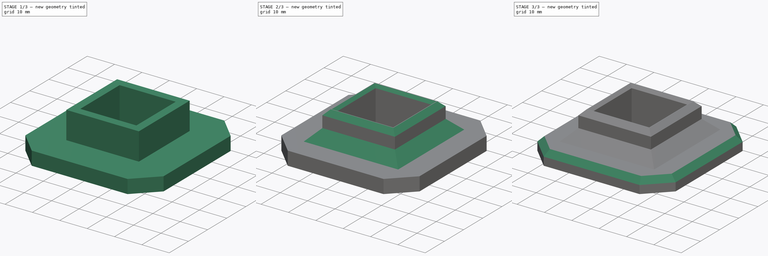
[diagram: build sequence overview — one tinted view per stage of 3, left to right]
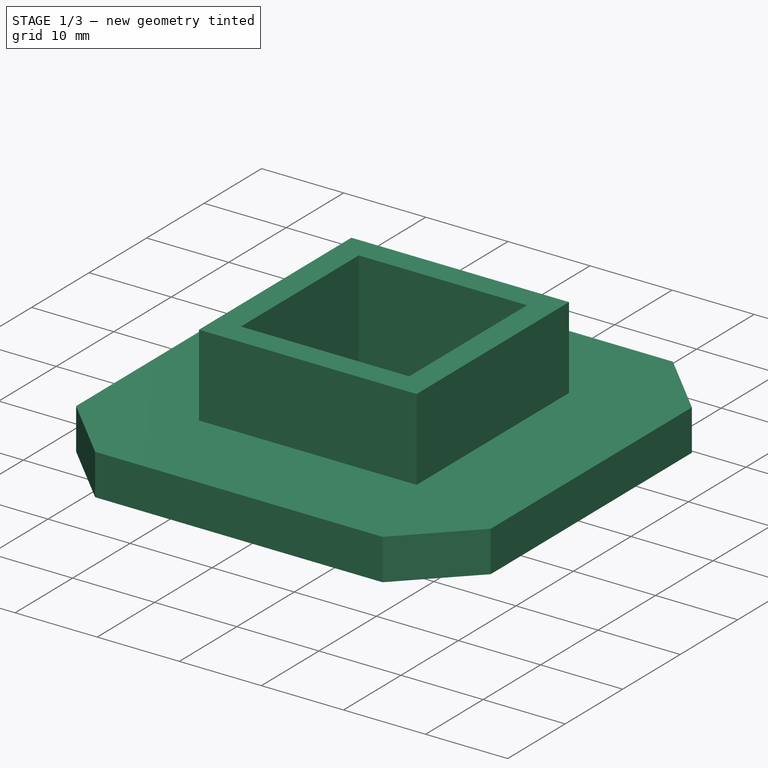
[diagram: stage 1 of 3 — iso view after this stage's code; geometry added in this stage tinted green]
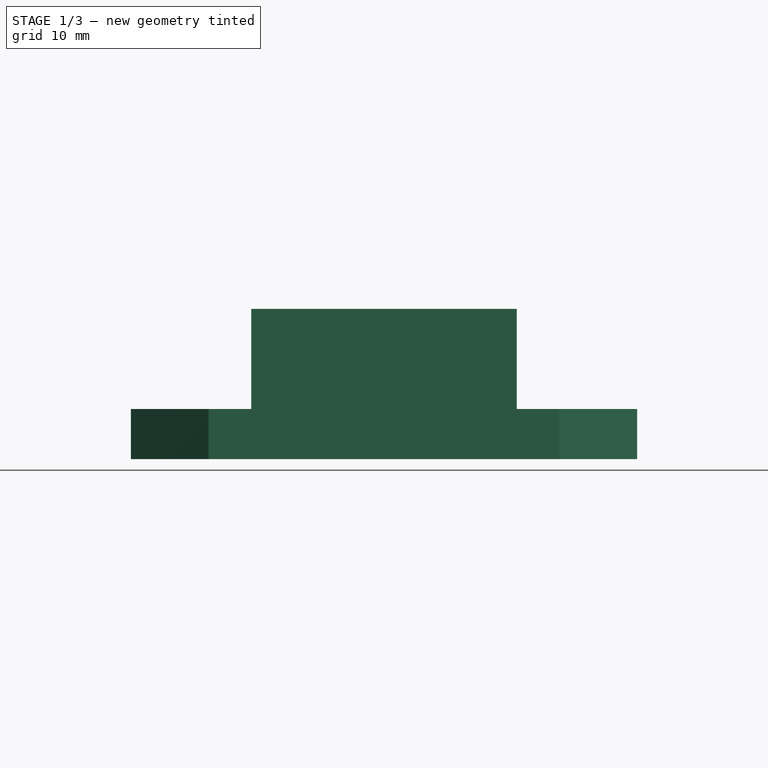
[diagram: stage 1 of 3 — front view after this stage's code; geometry added in this stage tinted green]
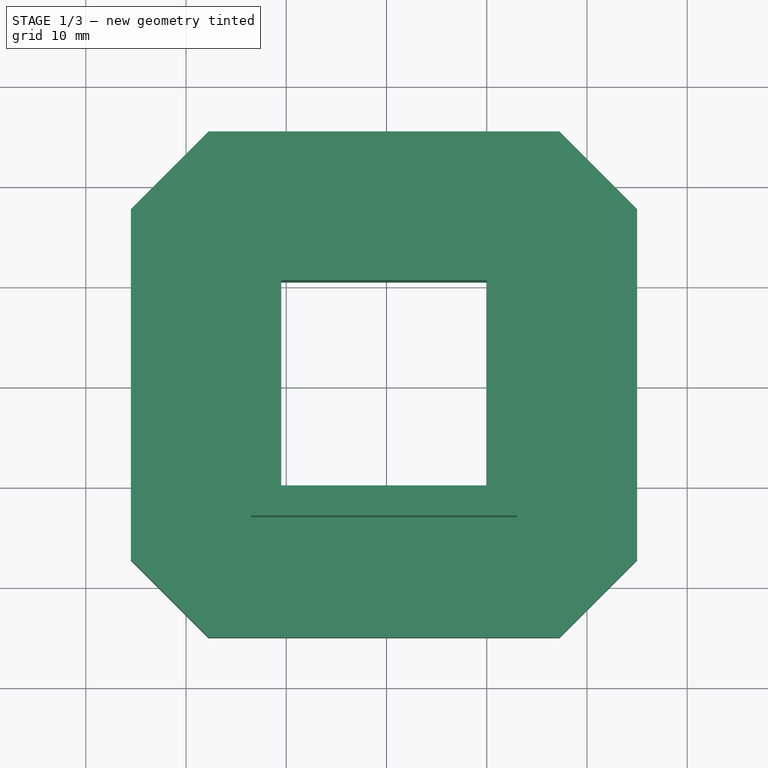
[diagram: stage 1 of 3 — top view after this stage's code; geometry added in this stage tinted green]
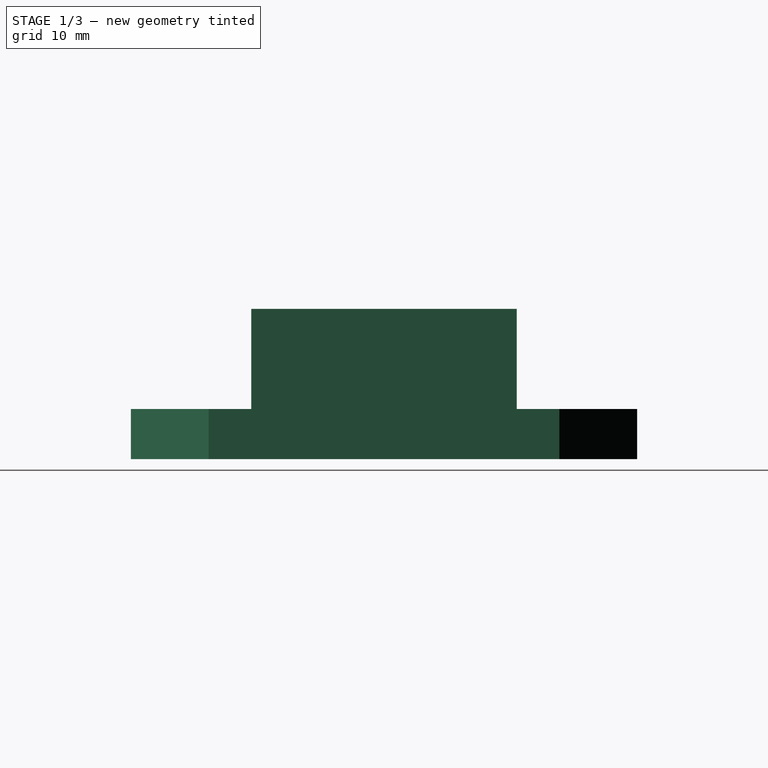
[diagram: stage 1 of 3 — right view after this stage's code; geometry added in this stage tinted green]
FCSTD DOCUMENT  (FreeCAD 1.0R38642 (Git))
Label: Dachreling_Fuß
License: All rights reserved
LicenseURL: http://en.wikipedia.org/wiki/All_rights_reserved
objects: Sketcher::SketchObject×4, PartDesign::Chamfer×4, PartDesign::Pad×2, PartDesign::SubtractivePipe×1, PartDesign::Body×1
note: 30 computed .brp shape members not serialized (recipe doc carries the construction recipe); baked Part::Feature solids carry a one-line shape summary decoded from their .brp

FEATURE [Sketcher::SketchObject] Sketch
  ArcFitTolerance = 1e-06
  AttachmentSupport = -> [XY_Plane]
  FullyConstrained = true
  MakeInternals = false
  MapMode = 5
  sketch-geometry (12):
    g0: LineSegment StartX=0 StartY=0 StartZ=0 EndX=0 EndY=20.5 EndZ=0
    g1: LineSegment StartX=0 StartY=20.5 StartZ=0 EndX=-20.5 EndY=20.5 EndZ=0
    g2: LineSegment StartX=-20.5 StartY=20.5 StartZ=0 EndX=-20.5 EndY=0 EndZ=0
    g3: LineSegment StartX=-20.5 StartY=0 StartZ=0 EndX=0 EndY=0 EndZ=0
    g4: LineSegment StartX=7.25 StartY=-15 StartZ=0 EndX=15 EndY=-7.25 EndZ=0
    g5: LineSegment StartX=15 StartY=-7.25 StartZ=0 EndX=15 EndY=27.75 EndZ=0
    g6: LineSegment StartX=15 StartY=27.75 StartZ=0 EndX=7.25 EndY=35.5 EndZ=0
    g7: LineSegment StartX=7.25 StartY=35.5 StartZ=0 EndX=-27.75 EndY=35.5 EndZ=0
    g8: LineSegment StartX=-27.75 StartY=35.5 StartZ=0 EndX=-35.5 EndY=27.75 EndZ=0
    g9: LineSegment StartX=-35.5 StartY=27.75 StartZ=0 EndX=-35.5 EndY=-7.25 EndZ=0
    g10: LineSegment StartX=-35.5 StartY=-7.25 StartZ=0 EndX=-27.75 EndY=-15 EndZ=0
    g11: LineSegment StartX=-27.75 StartY=-15 StartZ=0 EndX=7.25 EndY=-15 EndZ=0
  constraints (35):
    c: Coincident(g0,g1)
    c: Coincident(g1,g2)
    c: Coincident(g2,g3)
    c: Coincident(g3,g0)
    c: Vertical(g0)
    c: Vertical(g2)
    c: Horizontal(g1)
    c: Horizontal(g3)
    c: DistanceX(g1,g1) = 20.5
    c: DistanceY(g2,g2) = 20.5
    c: Coincident(g-1,g0)
    c: Coincident(g4,g5)
    c: Vertical(g5)
    c: Coincident(g5,g6)
    c: Coincident(g6,g7)
    c: Horizontal(g7)
    c: Coincident(g7,g8)
    c: Coincident(g8,g9)
    c: Vertical(g9)
    c: Coincident(g9,g10)
    c: Coincident(g10,g11)
    c: Coincident(g11,g4)
    c: Horizontal(g11)
    c: DistanceX(g0,g4) = 15
    c: DistanceX(g9,g2) = 15
    c: DistanceY(g0,g6) = 15
    c: DistanceY(g4,g0) = 15
    c: DistanceY(g9,g9) = 35
    c: Equal(g9,g7)
    c: Equal(g7,g5)
    c: Equal(g5,g11)
    c: Angle(g9,g8) = 2.35619
    c: Angle(g6,g5) = 2.35619
    c: Angle(g11,g10) = 2.35619
    c: Equal(g4,g6)
FEATURE [PartDesign::Pad] Pad
  Direction = (0,0,1)
  Length = 5
  Length2 = 10
  Profile = -> Sketch
  ReferenceAxis = -> Sketch [N_Axis]
  Suppressed = false
  Type = 0
FEATURE [Sketcher::SketchObject] Sketch001
  ArcFitTolerance = 1e-06
  AttachmentSupport = -> [Pad]
  ExternalGeometry = -> [Pad]
  FullyConstrained = true
  MakeInternals = false
  MapMode = 5
  Placement = pos=(0,0,5) rot=(0,0,1;0rad)
  sketch-geometry (8):
    g0: LineSegment StartX=-23.5 StartY=23.5 StartZ=0 EndX=-23.5 EndY=-3 EndZ=0
    g1: LineSegment StartX=-23.5 StartY=-3 StartZ=0 EndX=3 EndY=-3 EndZ=0
    g2: LineSegment StartX=3 StartY=-3 StartZ=0 EndX=3 EndY=23.5 EndZ=0
    g3: LineSegment StartX=3 StartY=23.5 StartZ=0 EndX=-23.5 EndY=23.5 EndZ=0
    g4: LineSegment StartX=-20.5 StartY=20.5 StartZ=0 EndX=-20.5 EndY=0 EndZ=0
    g5: LineSegment StartX=-20.5 StartY=0 StartZ=0 EndX=0 EndY=0 EndZ=0
    g6: LineSegment StartX=0 StartY=0 StartZ=0 EndX=0 EndY=20.5 EndZ=0
    g7: LineSegment StartX=0 StartY=20.5 StartZ=0 EndX=-20.5 EndY=20.5 EndZ=0
  constraints (22):
    c: Coincident(g0,g1)
    c: Coincident(g1,g2)
    c: Coincident(g2,g3)
    c: Coincident(g3,g0)
    c: Vertical(g0)
    c: Vertical(g2)
    c: Horizontal(g1)
    c: Horizontal(g3)
    c: DistanceX(g0,g-5) = 3
    c: DistanceY(g1,g-1) = 3
    c: Distance(g-6,g2) = 3
    c: DistanceY(g-4,g0) = 3
    c: Coincident(g4,g5)
    c: Coincident(g5,g6)
    c: Coincident(g6,g7)
    c: Coincident(g7,g4)
    c: Vertical(g4)
    c: Vertical(g6)
    c: Horizontal(g5)
    c: Horizontal(g7)
    c: Coincident(g4,g-4)
    c: Coincident(g5,g-1)
FEATURE [PartDesign::Pad] Pad001
  BaseFeature = -> Pad
  Direction = (0,0,1)
  Length = 10
  Length2 = 10
  Profile = -> Sketch001
  ReferenceAxis = -> Sketch001 [N_Axis]
  Suppressed = false
  Type = 0
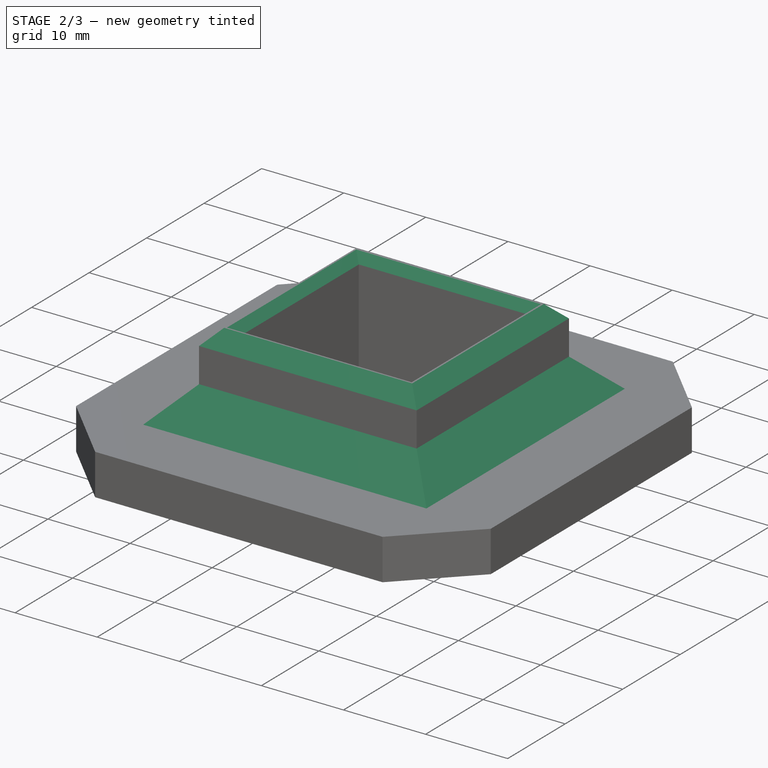
[diagram: stage 2 of 3 — iso view after this stage's code; geometry added in this stage tinted green]
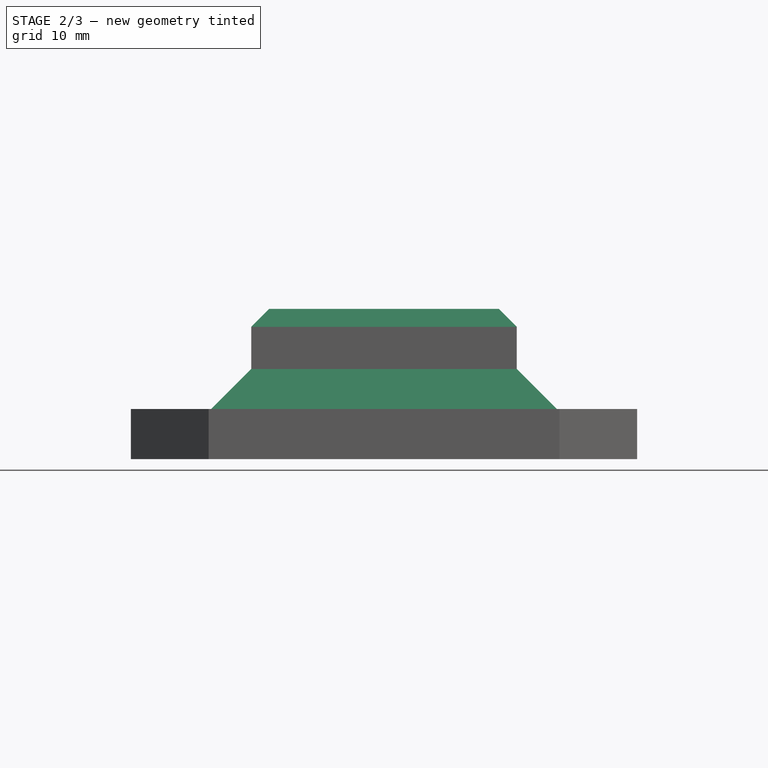
[diagram: stage 2 of 3 — front view after this stage's code; geometry added in this stage tinted green]
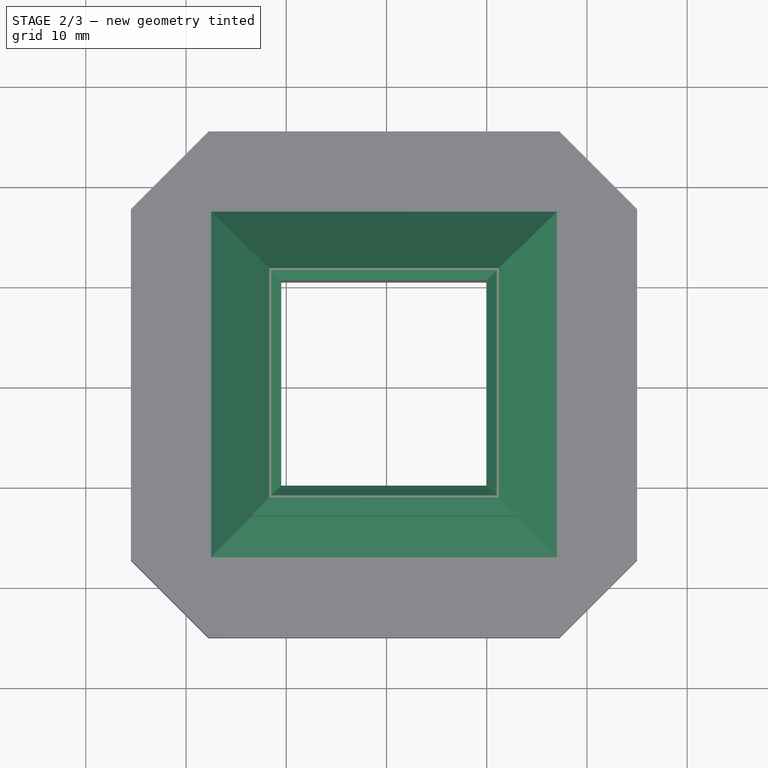
[diagram: stage 2 of 3 — top view after this stage's code; geometry added in this stage tinted green]
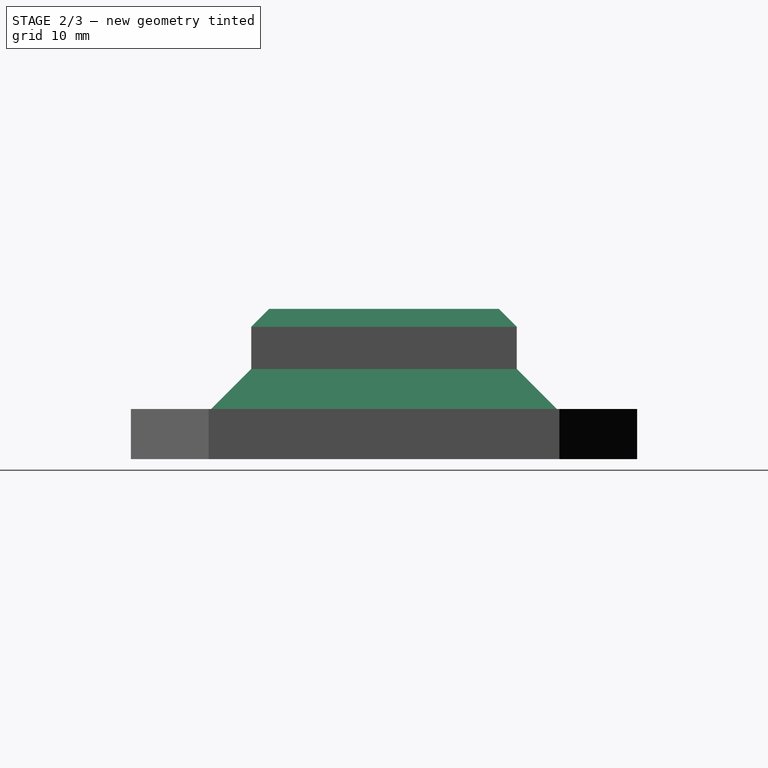
[diagram: stage 2 of 3 — right view after this stage's code; geometry added in this stage tinted green]
FEATURE [PartDesign::Chamfer] Chamfer
  Angle = 45
  Base = -> Pad001 [Edge26,Edge27,Edge28,Edge25]
  BaseFeature = -> Pad001
  ChamferType = 0
  FlipDirection = false
  Size = 4
  Size2 = 1
  SupportTransform = false
  Suppressed = false
  UseAllEdges = false
FEATURE [PartDesign::Chamfer] Chamfer001
  Angle = 45
  Base = -> Chamfer [Edge51,Edge50,Edge49,Edge52]
  BaseFeature = -> Chamfer
  ChamferType = 0
  FlipDirection = false
  Size = 1
  Size2 = 1
  SupportTransform = false
  Suppressed = false
  UseAllEdges = false
FEATURE [PartDesign::Chamfer] Chamfer002
  Angle = 45
  Base = -> Chamfer001 [Edge7,Edge8,Edge5,Edge6]
  BaseFeature = -> Chamfer001
  ChamferType = 0
  FlipDirection = false
  Size = 1.8
  Size2 = 1
  SupportTransform = false
  Suppressed = false
  UseAllEdges = false
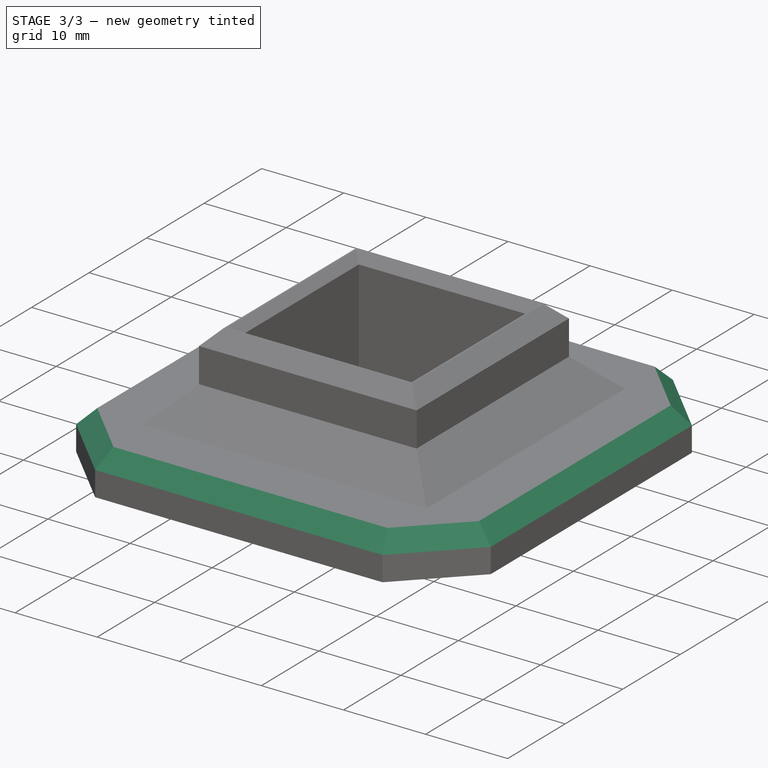
[diagram: stage 3 of 3 — iso view after this stage's code; geometry added in this stage tinted green]
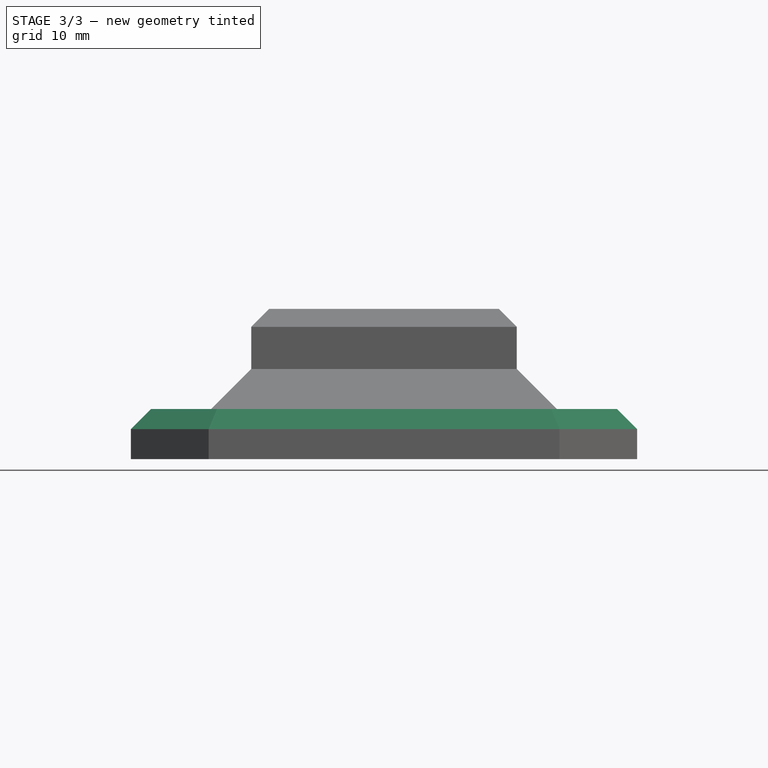
[diagram: stage 3 of 3 — front view after this stage's code; geometry added in this stage tinted green]
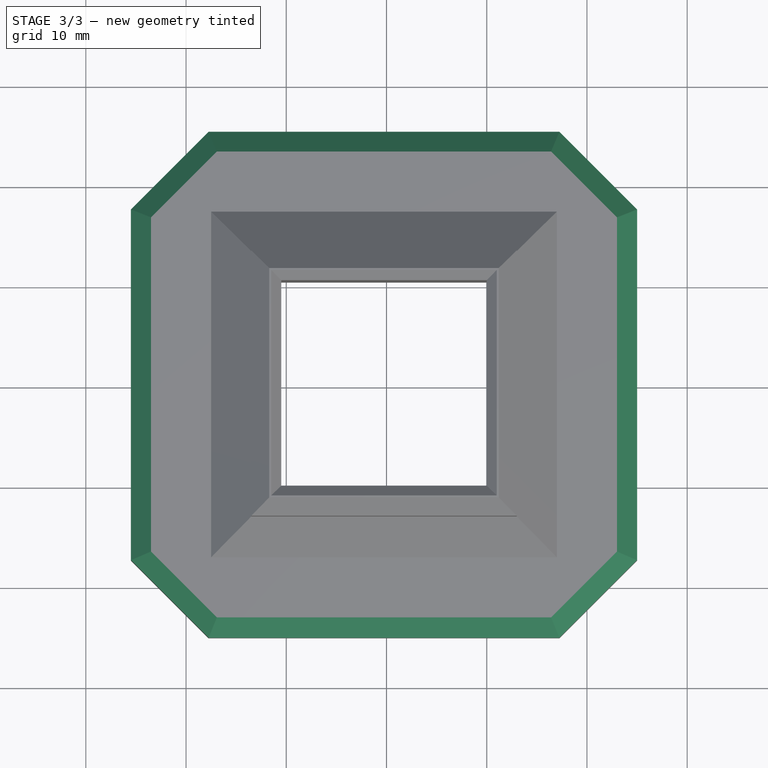
[diagram: stage 3 of 3 — top view after this stage's code; geometry added in this stage tinted green]
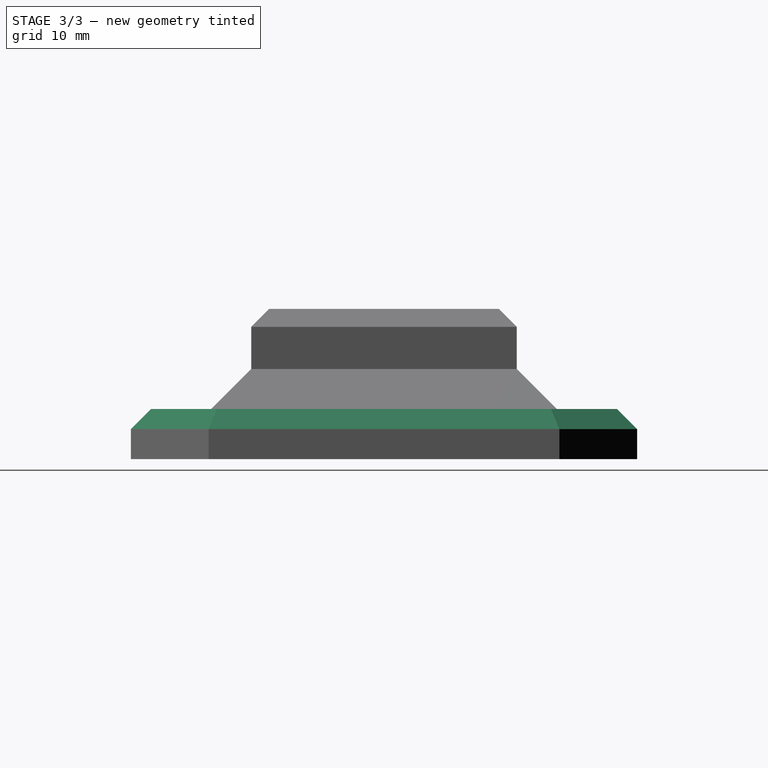
[diagram: stage 3 of 3 — right view after this stage's code; geometry added in this stage tinted green]
FEATURE [PartDesign::Chamfer] Chamfer003
  Angle = 45
  Base = -> Chamfer002 [Edge59,Edge61,Edge63,Edge64,Edge62,Edge60,Edge58,Edge57]
  BaseFeature = -> Chamfer002
  ChamferType = 0
  FlipDirection = false
  Size = 2
  Size2 = 1
  SupportTransform = false
  Suppressed = false
  UseAllEdges = false
FEATURE [Sketcher::SketchObject] Sketch002
  ArcFitTolerance = 1e-06
  AttachmentSupport = -> [Chamfer003]
  ExternalGeometry = -> [Chamfer003]
  FullyConstrained = true
  MakeInternals = false
  MapMode = 5
  Placement = pos=(0,0,0) rot=(1,0,0;3.14159rad)
  sketch-geometry (16):
    g0: LineSegment StartX=-27.75 StartY=15 StartZ=0 EndX=7.25 EndY=15 EndZ=0
    g1: LineSegment StartX=7.25 StartY=15 StartZ=0 EndX=15 EndY=7.25 EndZ=0
    g2: LineSegment StartX=15 StartY=7.25 StartZ=0 EndX=15 EndY=-27.75 EndZ=0
    g3: LineSegment StartX=15 StartY=-27.75 StartZ=0 EndX=7.25 EndY=-35.5 EndZ=0
    g4: LineSegment StartX=7.25 StartY=-35.5 StartZ=0 EndX=-27.75 EndY=-35.5 EndZ=0
    g5: LineSegment StartX=-27.75 StartY=-35.5 StartZ=0 EndX=-35.5 EndY=-27.75 EndZ=0
    g6: LineSegment StartX=-35.5 StartY=-27.75 StartZ=0 EndX=-35.5 EndY=7.25 EndZ=0
    g7: LineSegment StartX=-35.5 StartY=7.25 StartZ=0 EndX=-27.75 EndY=15 EndZ=0
    g8: LineSegment StartX=-27.5 StartY=4.46447 StartZ=0 EndX=-23.9645 EndY=8 EndZ=0
    g9: LineSegment StartX=-23.9645 StartY=8 StartZ=0 EndX=3.46447 EndY=8 EndZ=0
    g10: LineSegment StartX=3.46447 StartY=8 StartZ=0 EndX=7 EndY=4.46447 EndZ=0
    g11: LineSegment StartX=7 StartY=4.46447 StartZ=0 EndX=7 EndY=-23.9645 EndZ=0
    g12: LineSegment StartX=7 StartY=-23.9645 StartZ=0 EndX=3.46447 EndY=-27.5 EndZ=0
    g13: LineSegment StartX=3.46447 StartY=-27.5 StartZ=0 EndX=-23.9645 EndY=-27.5 EndZ=0
    g14: LineSegment StartX=-23.9645 StartY=-27.5 StartZ=0 EndX=-27.5 EndY=-23.9645 EndZ=0
    g15: LineSegment StartX=-27.5 StartY=-23.9645 StartZ=0 EndX=-27.5 EndY=4.46447 EndZ=0
  constraints (42):
    c: Coincident(g-10,g0)
    c: Horizontal(g0)
    c: Coincident(g0,g1)
    c: Coincident(g1,g-4)
    c: Coincident(g1,g2)
    c: Coincident(g2,g3)
    c: Coincident(g3,g-6)
    c: Coincident(g3,g4)
    c: Coincident(g4,g-7)
    c: Coincident(g4,g5)
    c: PointOnObject(g5,g-7)
    c: Coincident(g5,g6)
    c: Coincident(g6,g-9)
    c: Vertical(g6)
    c: Coincident(g6,g7)
    c: Coincident(g7,g0)
    c: PointOnObject(g0,g-3)
    c: Coincident(g2,g-5)
    c: Coincident(g8,g9)
    c: Coincident(g8,g15)
    c: Coincident(g9,g10)
    c: Coincident(g10,g11)
    c: Coincident(g11,g12)
    c: Coincident(g12,g13)
    c: Coincident(g13,g14)
    c: Coincident(g14,g15)
    c: DistanceX(g5,g14) = 8
    c: DistanceY(g3,g12) = 8
    c: DistanceX(g11,g2) = 8
    c: DistanceY(g-1,g9) = 8
    c: Vertical(g15)
    c: Vertical(g11)
    c: Horizontal(g9)
    c: Horizontal(g13)
    c: Parallel(g7,g8)
    c: Parallel(g10,g1)
    c: Parallel(g12,g3)
    c: Parallel(g14,g5)
    c: Distance(g8,g8) = 5
    c: Equal(g10,g8)
    c: Equal(g8,g14)
    c: Equal(g14,g12)
FEATURE [Sketcher::SketchObject] Sketch003
  ArcFitTolerance = 1e-06
  AttachmentSupport = -> [XZ_Plane]
  ExternalGeometry = -> [Sketch002]
  FullyConstrained = true
  MakeInternals = false
  MapMode = 5
  Placement = pos=(0,0,0) rot=(1,0,0;1.5708rad)
  sketch-geometry (1):
    g0: Circle CenterX=-27.5 CenterY=5.3e-15 CenterZ=0 NormalX=0 NormalY=0 NormalZ=1 AngleXU=0 Radius=3
  constraints (2):
    c: Coincident(g0,g-4)
    c: Diameter(g0) = 6
FEATURE [PartDesign::SubtractivePipe] SubtractivePipe
  AuxilleryCurvelinear = true
  AuxillerySpineTangent = false
  BaseFeature = -> Chamfer003
  Binormal = (0,0,0)
  Mode = 0
  Profile = -> Sketch003
  Spine = -> Sketch002 [Edge16,Edge15,Edge14,Edge13,Edge12,Edge11,Edge10,Edge9]
  SpineTangent = false
  Suppressed = false
  Transformation = 0
  Transition = 1
FEATURE [PartDesign::Body] Body  label="Körper"
  AllowCompound = false
  Group = -> [Sketch,Pad,Sketch001,Pad001,Chamfer,Chamfer001,Chamfer002,Chamfer003,Sketch002,Sketch003,SubtractivePipe]
  Origin = -> Origin
  Tip = -> SubtractivePipe
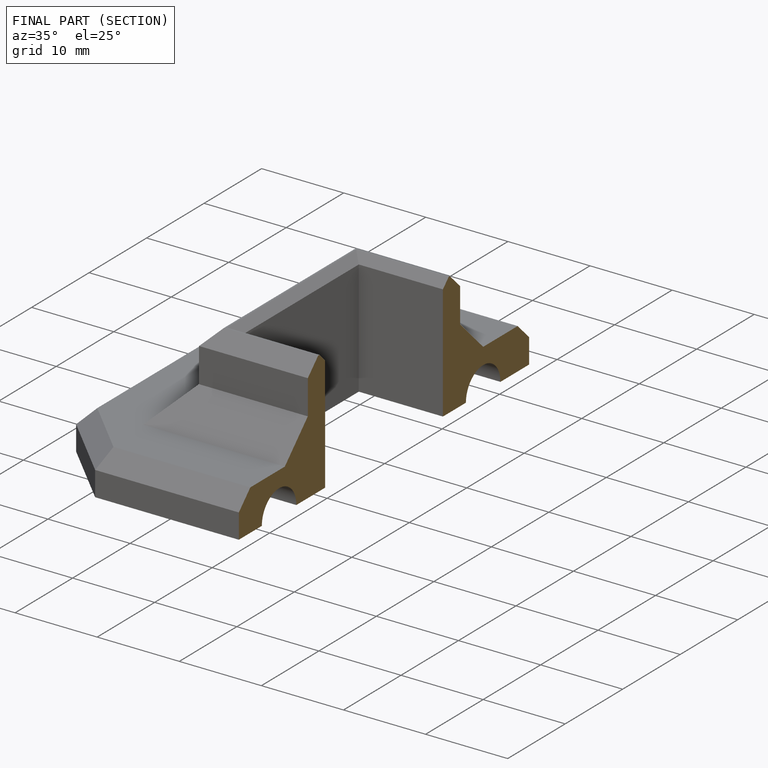
[diagram: finished part — half-section view (interior)]
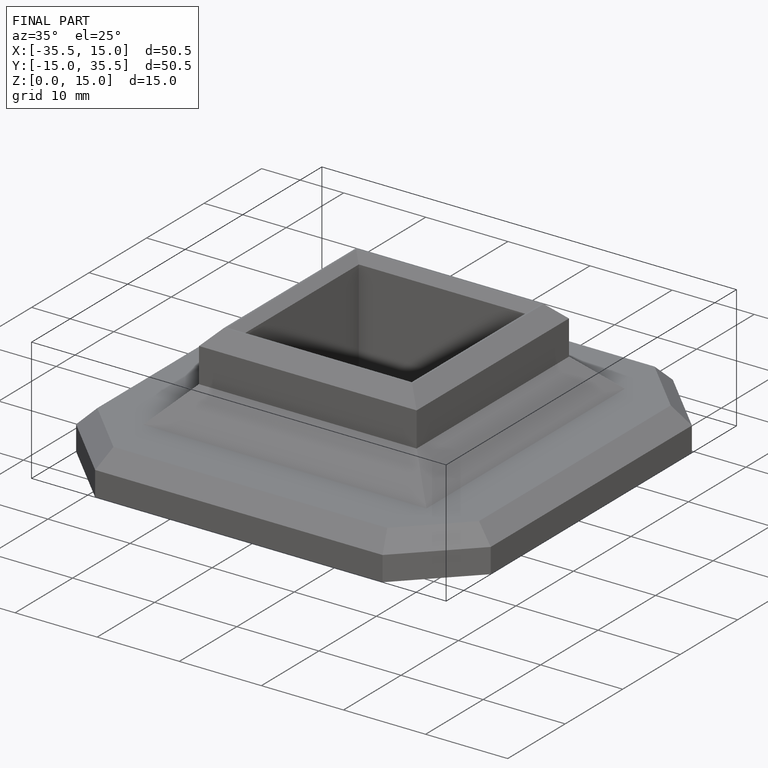
[diagram: finished part — iso view with bounding-box wireframe]
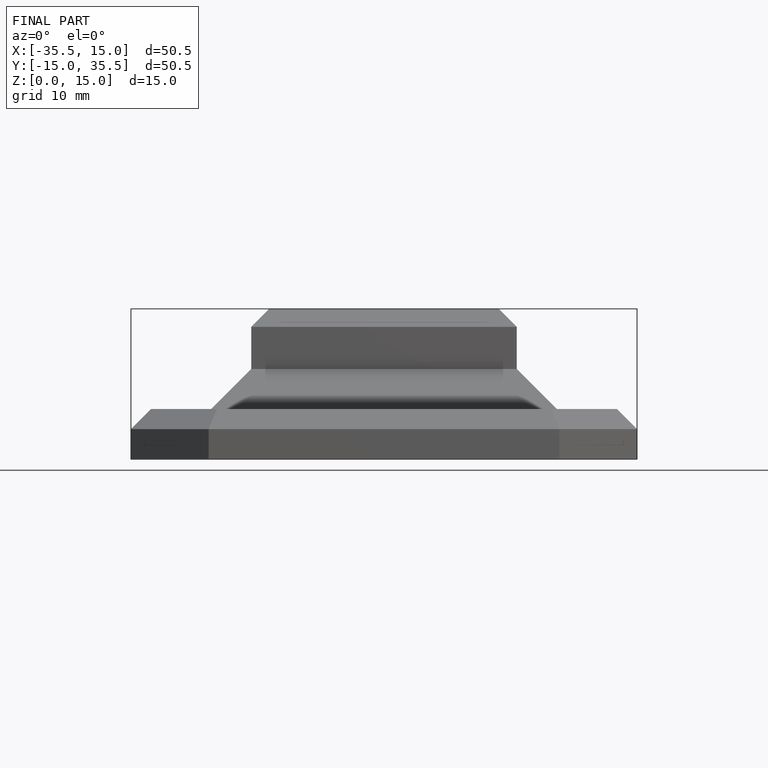
[diagram: finished part — front view with bounding-box wireframe]
